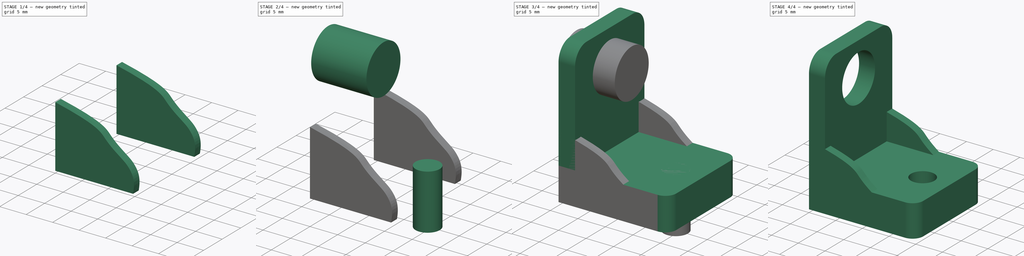
[diagram: build sequence overview — one tinted view per stage of 4, left to right]
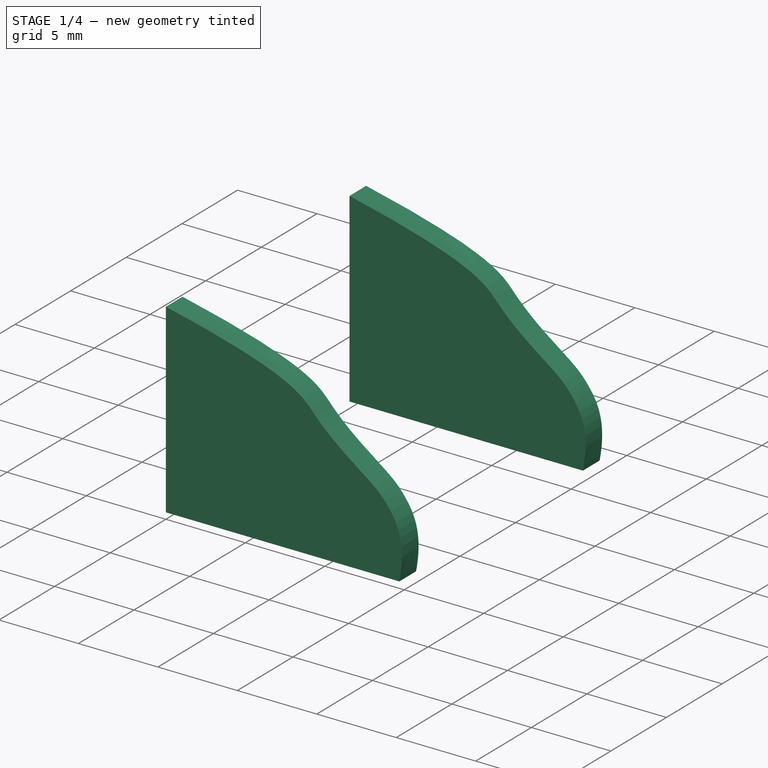
[diagram: stage 1 of 4 — iso view after this stage's code; geometry added in this stage tinted green]
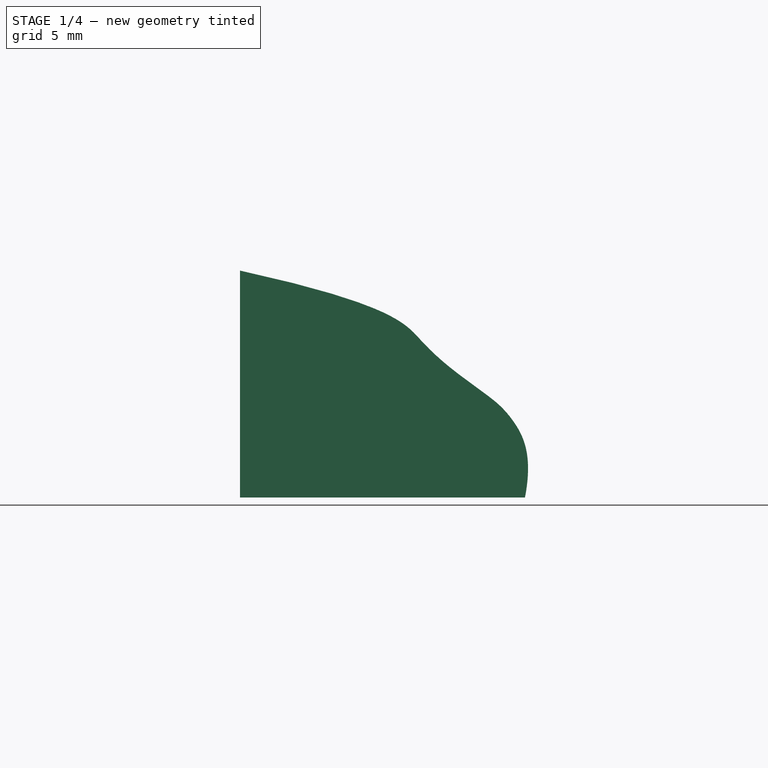
[diagram: stage 1 of 4 — front view after this stage's code; geometry added in this stage tinted green]
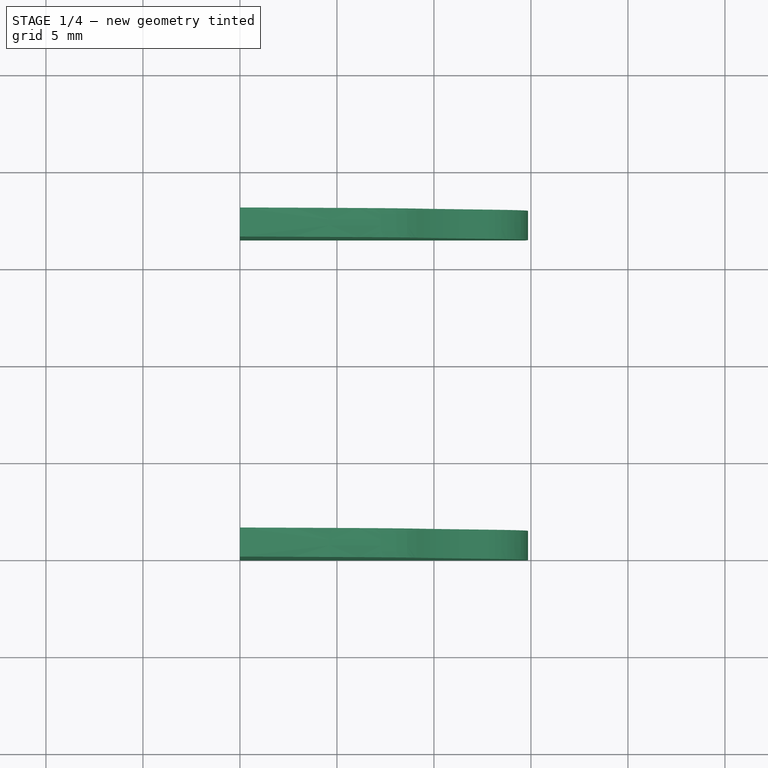
[diagram: stage 1 of 4 — top view after this stage's code; geometry added in this stage tinted green]
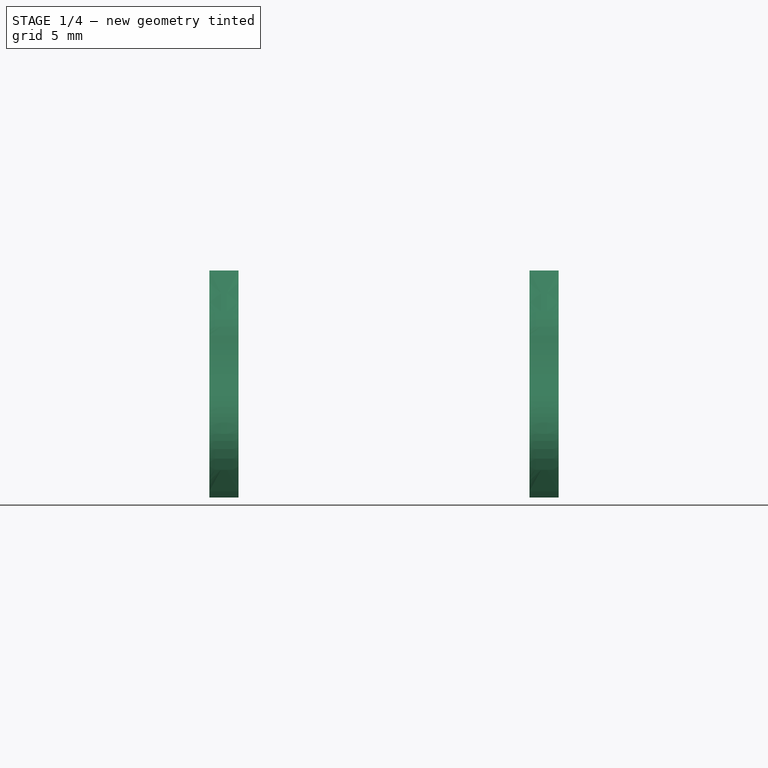
[diagram: stage 1 of 4 — right view after this stage's code; geometry added in this stage tinted green]
FCSTD DOCUMENT  (FreeCAD 0.18.4R)
Label: power_12v
License: FreeArt
LicenseURL: http://artlibre.org/licence/lal
objects: Part::MultiFuse×4, Part::Box×2, Part::Cylinder×2, Part::Fillet×2, Spreadsheet::Sheet×1, Part::Cut×1, Sketcher::SketchObject×1, PartDesign::Pad×1, PartDesign::Body×1, Part::Mirroring×1, App::Part×1
note: 16 computed .brp shape members not serialized (recipe doc carries the construction recipe); baked Part::Feature solids carry a one-line shape summary decoded from their .brp

FEATURE [Sketcher::SketchObject] Sketch
  MapMode = 5
  Placement = pos=(0,0,0) rot=(1,0,0;1.5708rad)
  Support = -> [XZ_Plane001]
  sketch-geometry (16):
    g0: LineSegment StartX=0 StartY=11.6946 StartZ=0 EndX=0 EndY=0 EndZ=0
    g1: LineSegment StartX=0 StartY=0 StartZ=0 EndX=14.6909 EndY=0 EndZ=0
    g2-g9: Circle [constr] x8 (B-spline internal-alignment scaffolding for g10; pole/knot coordinates omitted)
    g10: BSplineCurve PolesCount=8 KnotsCount=6 Degree=3 IsPeriodic=0
    g11: GeomPoint [constr] X=4.62713 Y=19.3992 Z=0
    g12: GeomPoint [constr] X=6.4073 Y=13.3501 Z=0
    g13: GeomPoint [constr] X=8.32305 Y=9.21246 Z=0
    g14: GeomPoint [constr] X=11.1704 Y=5.68712 Z=0
    g15: GeomPoint [constr] X=14.6909 Y=0 Z=0
  constraints (9):
    c: Coincident(g1,g-1)
    c: Radius(g2) = 0.6
    c: Equal(g2, g3-g9) x7
    c: Coincident(g10,g1)
    c: InternalAlignment(g2-g9 -> g10) x8
    c: Coincident(g0,g1)
    c: Coincident(g1,g15)
    c: Vertical(g0)
    c: Coincident(g10,g0)
FEATURE [PartDesign::Pad] Pad  label="side wall pad"
  Length = 1.5
  Length2 = 100
  Placement = pos=(0,0,0) rot=(1,0,0;1.5708rad)
  Profile = -> Sketch
  Type = 0
  expr: Length = p.side_wall
FEATURE [PartDesign::Body] Body  label="side wall body"
  Group = -> [Sketch,Pad]
  Origin = -> Origin001
  Tip = -> Pad
FEATURE [Part::Mirroring] Part__Mirroring  label="side wall body (Mirror #1)"
  Base = (0,7.5,0)
  Normal = (0,1,0)
  Source = -> Body
  expr: Base.y = p.socket_wall_y / 2 - p.side_wall
FEATURE [Part::MultiFuse] Fusion002  label="side wall fusion"
  Placement = pos=(0,1.5,0) rot=(0,0,1;0rad)
  Shapes = -> [Part__Mirroring,Body]
  expr: Placement.Base.y = p.side_wall
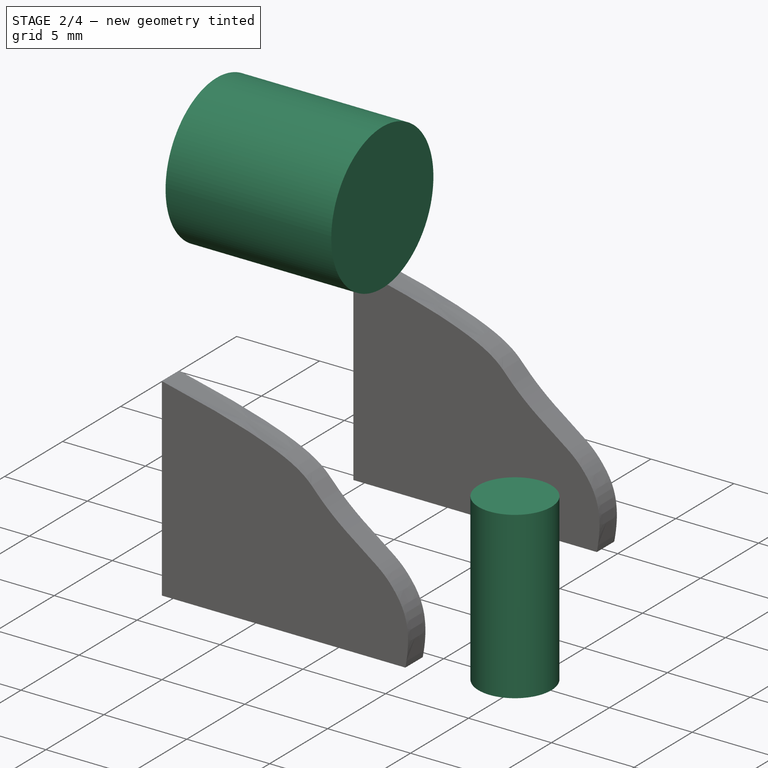
[diagram: stage 2 of 4 — iso view after this stage's code; geometry added in this stage tinted green]
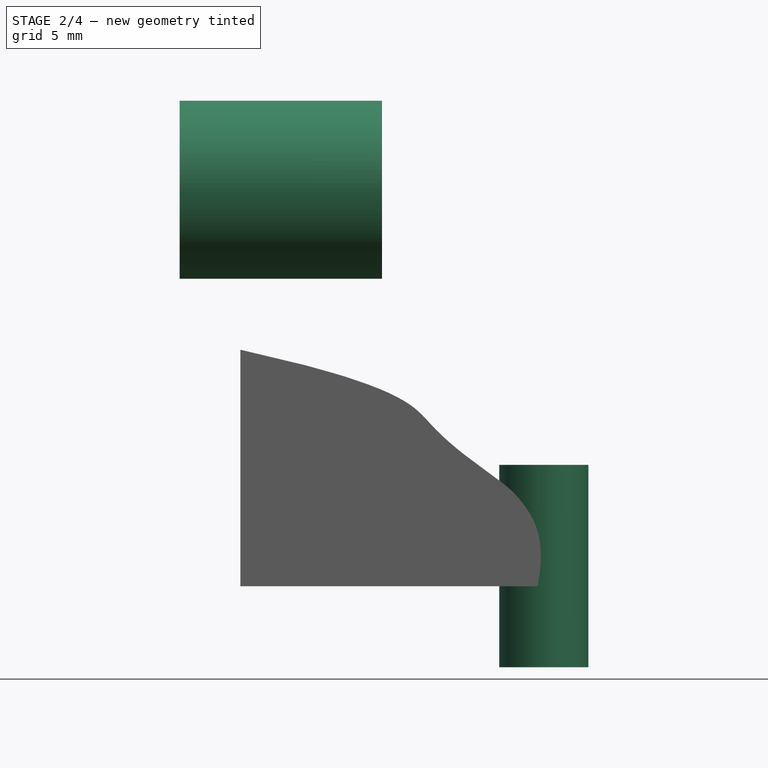
[diagram: stage 2 of 4 — front view after this stage's code; geometry added in this stage tinted green]
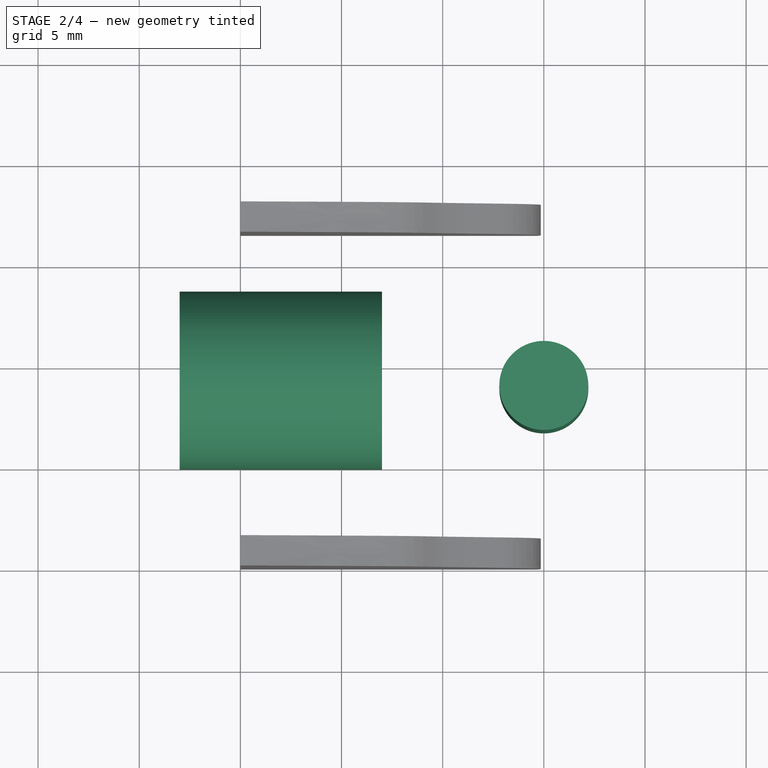
[diagram: stage 2 of 4 — top view after this stage's code; geometry added in this stage tinted green]
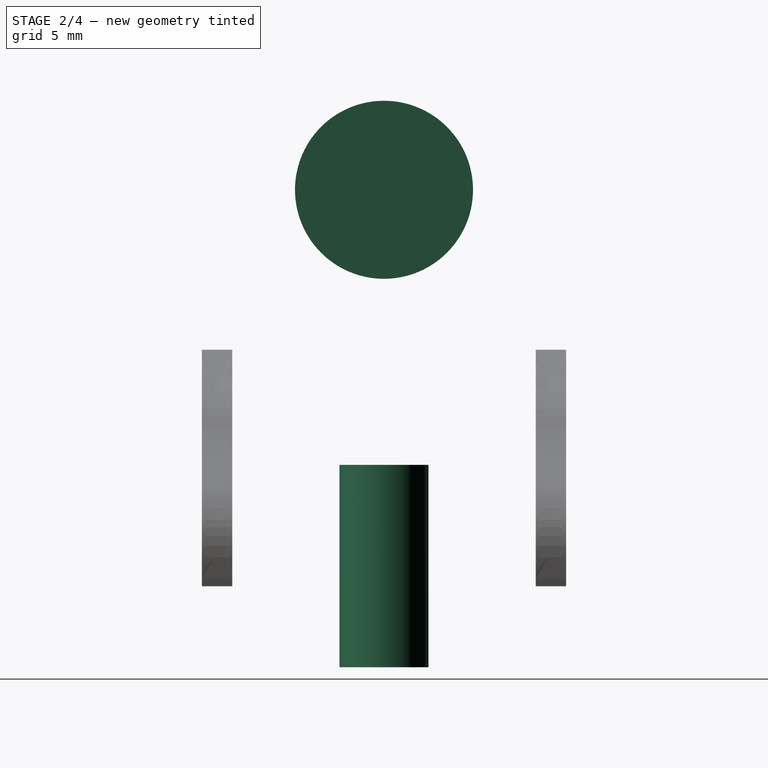
[diagram: stage 2 of 4 — right view after this stage's code; geometry added in this stage tinted green]
FEATURE [Part::Cylinder] Cylinder  label="socket hole"
  Angle = 360
  AttacherType = Attacher::AttachEngine3D
  Height = 10
  Placement = pos=(-3,9,19.6) rot=(0,1,0;1.5708rad)
  Radius = 4.4
  expr: Placement.Base.y = p.socket_wall_y / 2
  expr: Placement.Base.z = p.socket_wall_z - p.socket_hole_r + p.attach_z - 2
  expr: Radius = p.socket_hole_r
FEATURE [Part::Cylinder] Cylinder001  label="bolt hole"
  Angle = 360
  AttacherType = Attacher::AttachEngine3D
  Height = 10
  Placement = pos=(15,9,-4) rot=(0,0,1;0rad)
  Radius = 2.2
  expr: Placement.Base.x = p.bottom_wall_x - p.attach_hole_dist / 2
  expr: Placement.Base.y = p.bottom_wall_y / 2
  expr: Radius = p.attach_hole_r
FEATURE [Part::MultiFuse] Fusion001  label="hole fusion"
  Shapes = -> [Cylinder,Cylinder001]
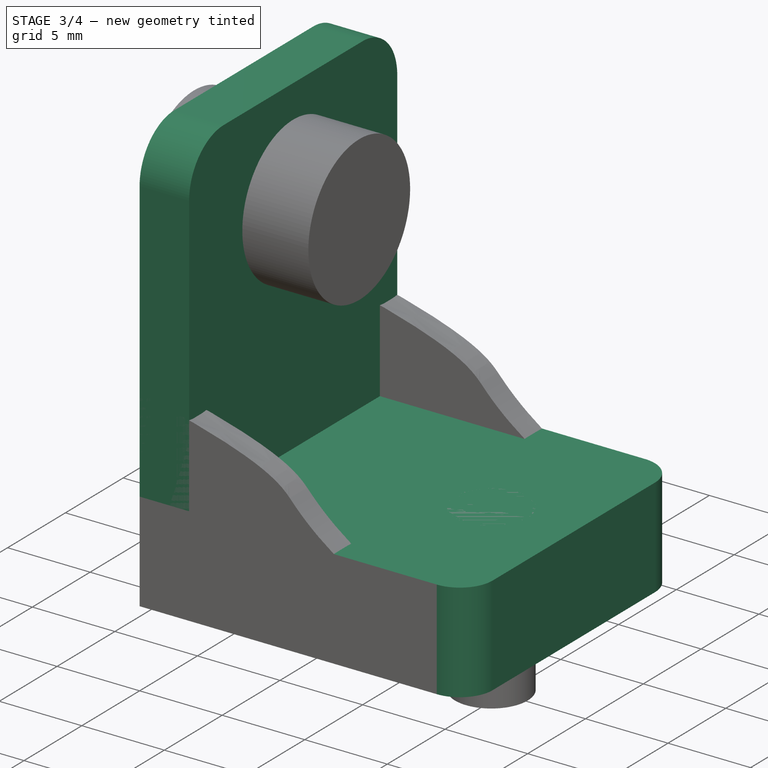
[diagram: stage 3 of 4 — iso view after this stage's code; geometry added in this stage tinted green]
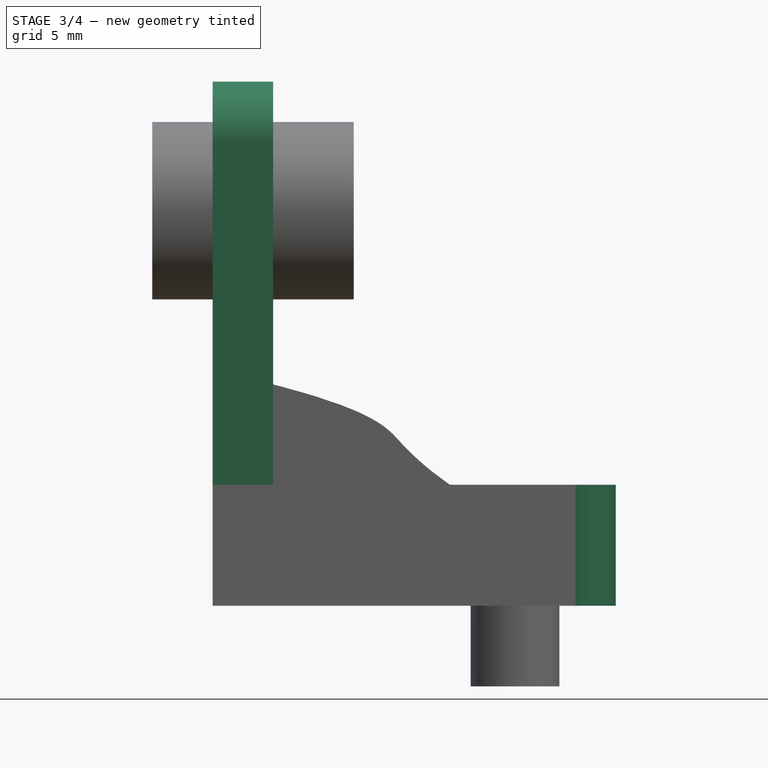
[diagram: stage 3 of 4 — front view after this stage's code; geometry added in this stage tinted green]
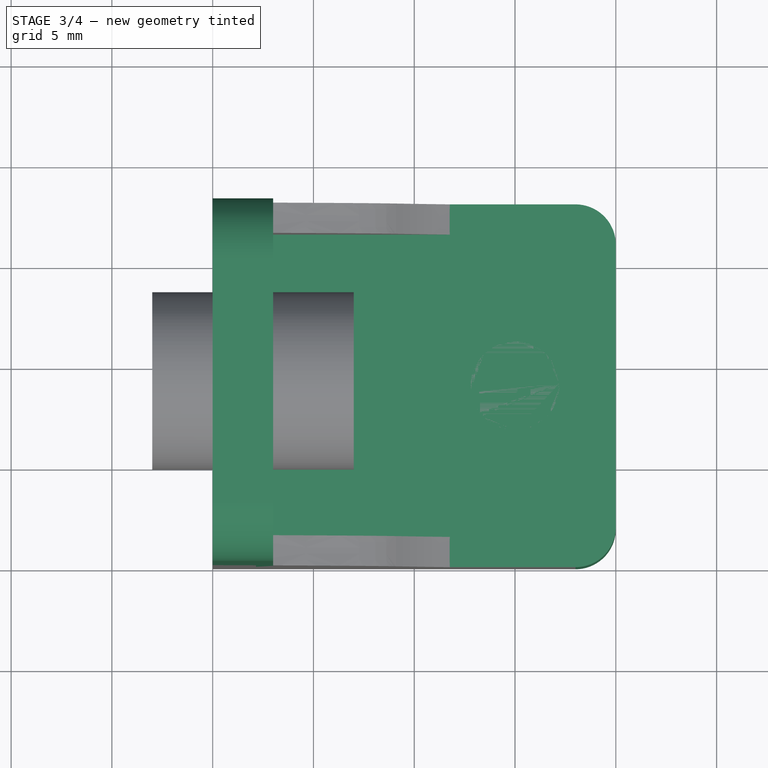
[diagram: stage 3 of 4 — top view after this stage's code; geometry added in this stage tinted green]
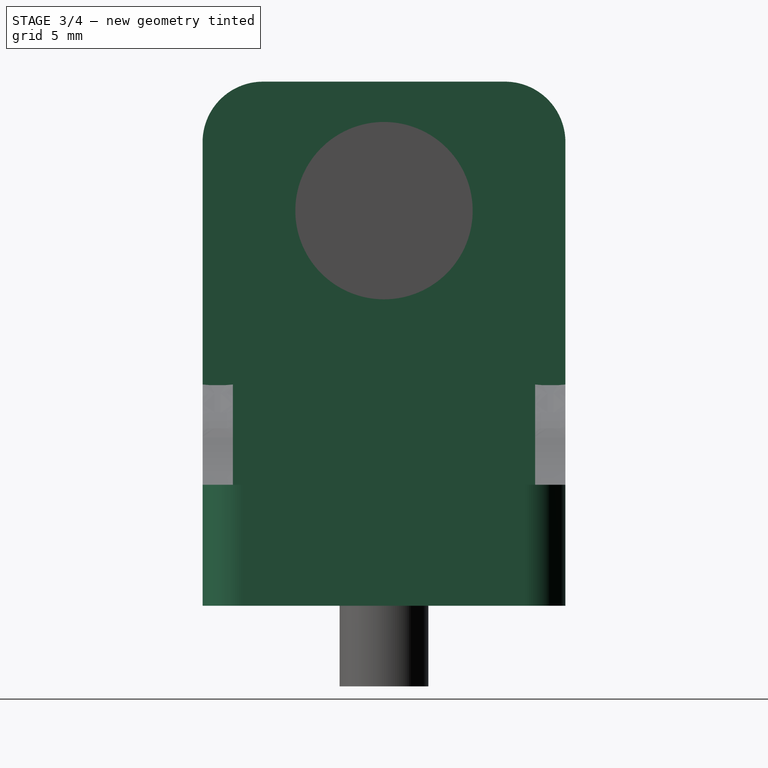
[diagram: stage 3 of 4 — right view after this stage's code; geometry added in this stage tinted green]
FEATURE [Part::Box] Box  label="bottom cube"
  AttacherType = Attacher::AttachEngine3D
  Height = 6
  Length = 20
  Width = 18
  expr: Length = p.bottom_wall_x
  expr: Width = p.bottom_wall_y
  expr: Height = p.attach_z
FEATURE [Spreadsheet::Sheet] Spreadsheet  label="p"
  cells = A1=socket_hole_r; B1(socket_hole_r)=4.4; A2=socket_wall_x; B2(socket_wall_x)=3; A3=socket_wall_y; B3(socket_wall_y)=18; A4=socket_wall_z; B4(socket_wall_z)=20; A5=bottom_wall_x; B5(bottom_wall_x)=20; A6=bottom_wall_y; B6(bottom_wall_y)==p.socket_wall_y; A7=attach_hole_dist; B7(attach_hole_dist)=10; A8=attach_hole_r; B8(attach_hole_r)=2.2; A9=attach_hole_wall; B9(attach_hole_wall)=3; A10=attach_z; B10(attach_z)=6; A11=side_wall; B11(side_wall)=1.5
FEATURE [Part::Box] Box001  label="socket cube"
  AttacherType = Attacher::AttachEngine3D
  Height = 20
  Length = 3
  Placement = pos=(0,0,6) rot=(0,0,1;0rad)
  Width = 18
  expr: Length = p.socket_wall_x
  expr: Width = p.socket_wall_y
  expr: Placement.Base.z = p.attach_z
  expr: Height = p.socket_wall_z
FEATURE [Part::Fillet] Fillet  label="bottom fillet"
  Base = -> Box
  Edges = 2 edges r=2: [Edge5,Edge7]
FEATURE [Part::Fillet] Fillet001  label="socket fillet"
  Base = -> Box001
  Edges = 2 edges r=3: [Edge10,Edge12]
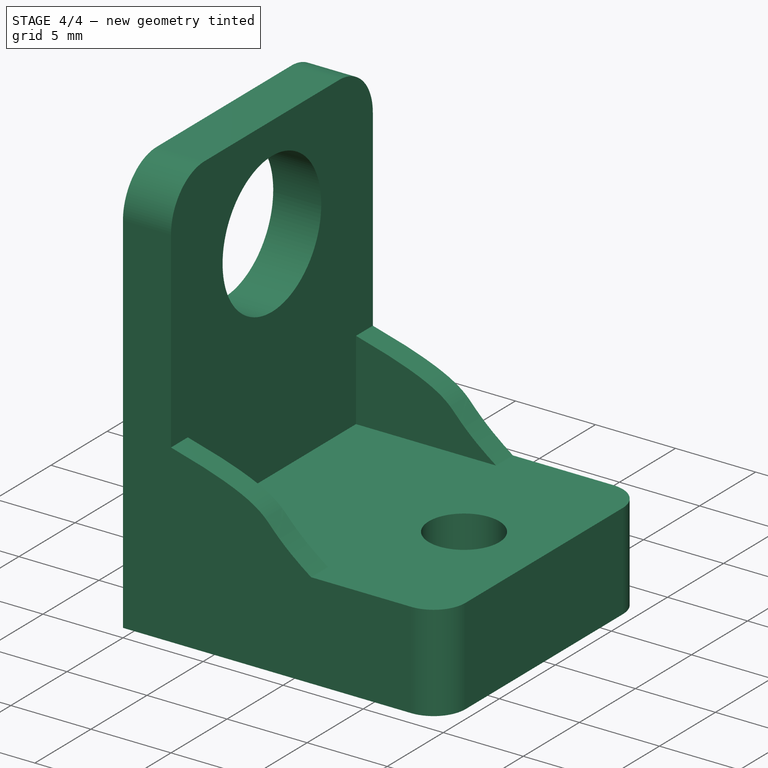
[diagram: stage 4 of 4 — iso view after this stage's code; geometry added in this stage tinted green]
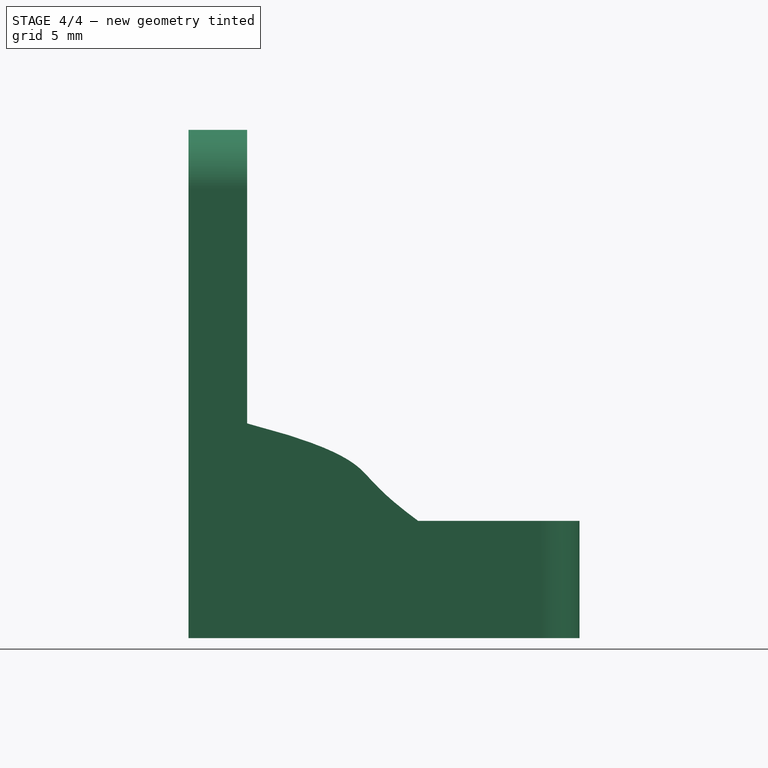
[diagram: stage 4 of 4 — front view after this stage's code; geometry added in this stage tinted green]
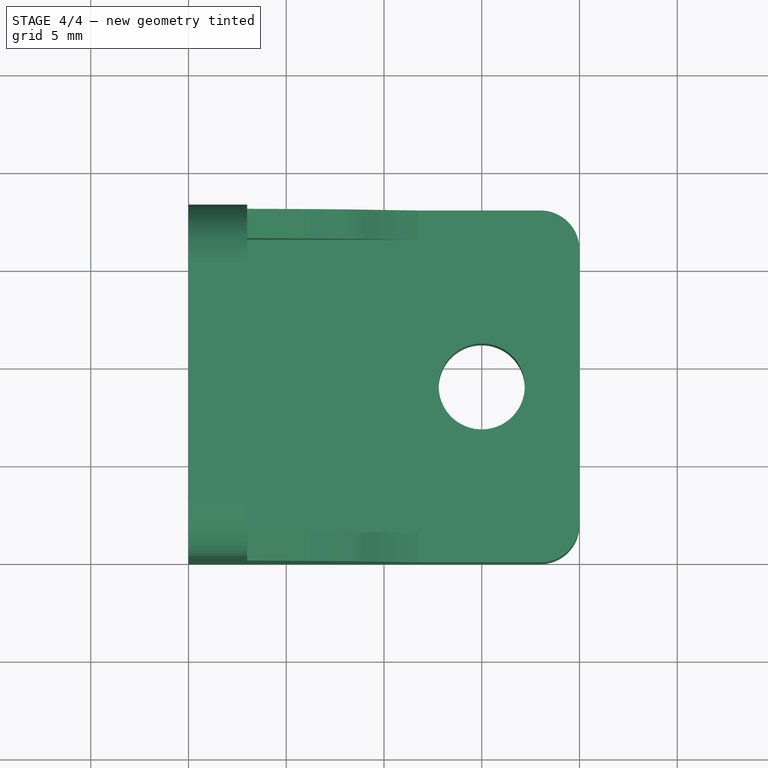
[diagram: stage 4 of 4 — top view after this stage's code; geometry added in this stage tinted green]
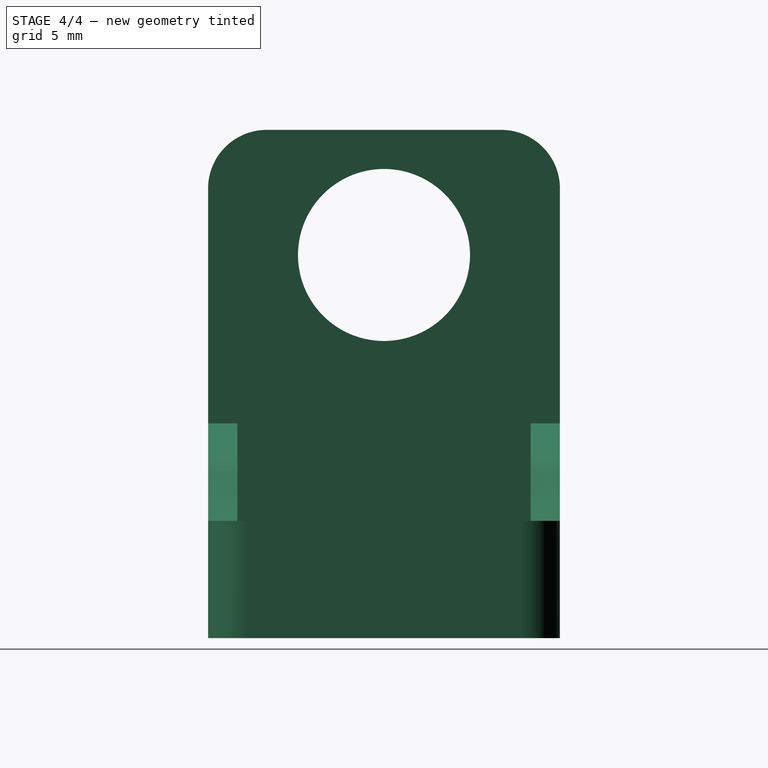
[diagram: stage 4 of 4 — right view after this stage's code; geometry added in this stage tinted green]
FEATURE [Part::MultiFuse] Fusion  label="socket walls"
  Shapes = -> [Fillet,Fillet001]
FEATURE [Part::Cut] Cut  label="socket angle cut"
  Base = -> Fusion
  Tool = -> Fusion001
FEATURE [Part::MultiFuse] Fusion003  label="power 12v socket fusion"
  Shapes = -> [Cut,Fusion002]
FEATURE [App::Part] Part  label="socket angle part"
  Group = -> [Body,Part__Mirroring,Fusion002,Cylinder001,Fillet,Fusion,Cut,Box,Box001,Cylinder,Fusion001,Fillet001,Fusion003]
  Origin = -> Origin
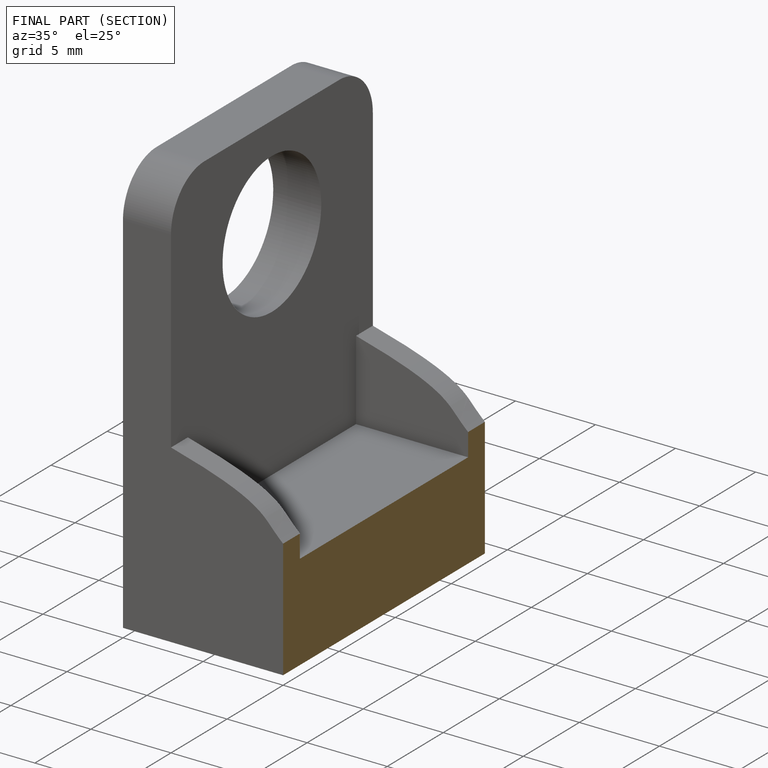
[diagram: finished part — half-section view (interior)]
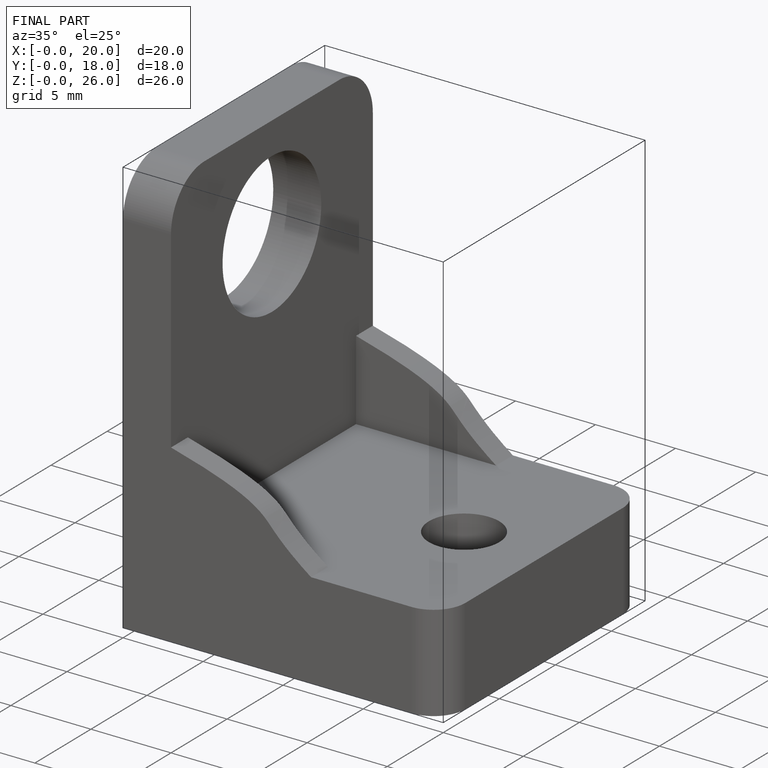
[diagram: finished part — iso view with bounding-box wireframe]
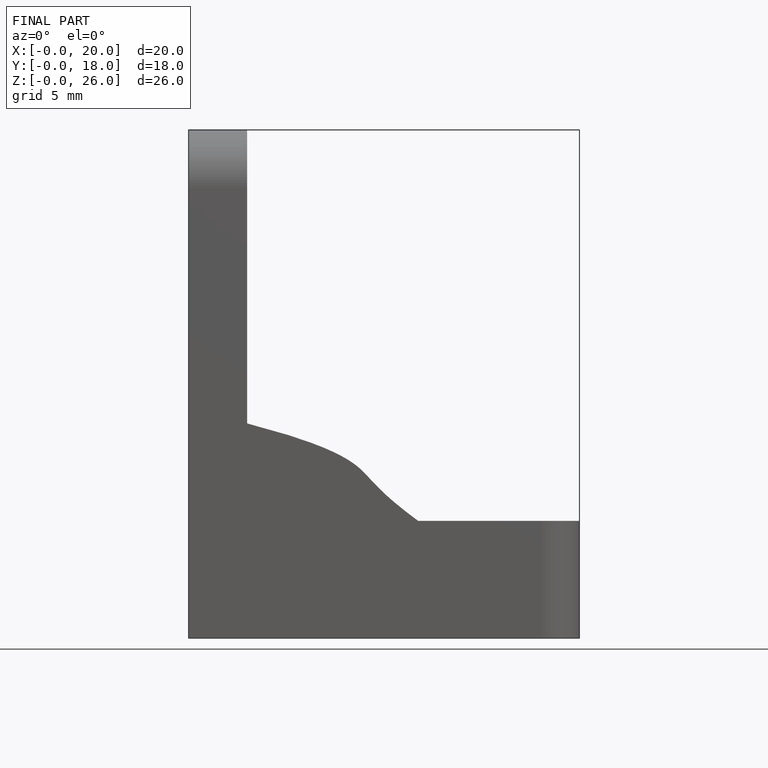
[diagram: finished part — front view with bounding-box wireframe]
